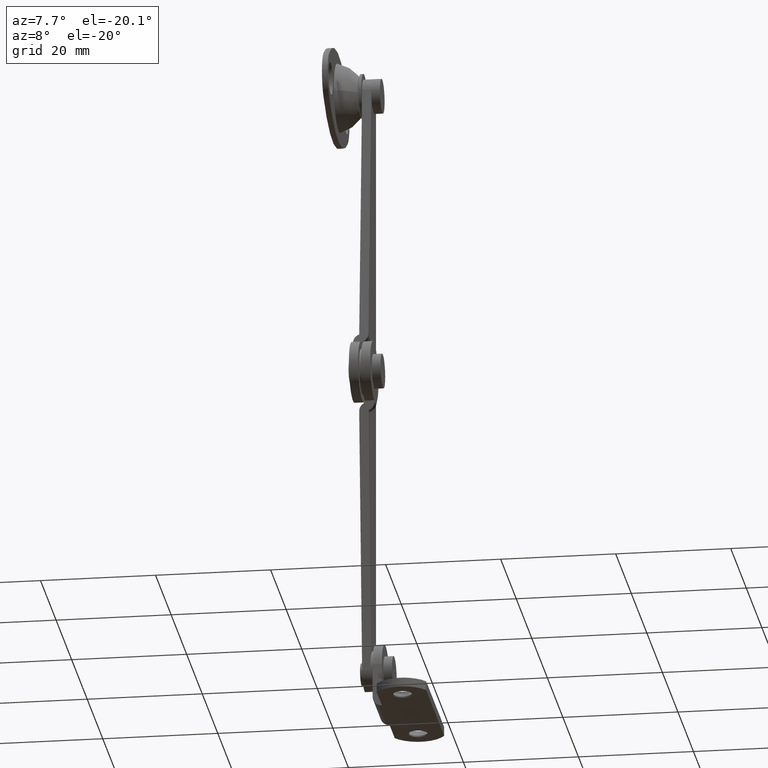
[diagram: clean part render]
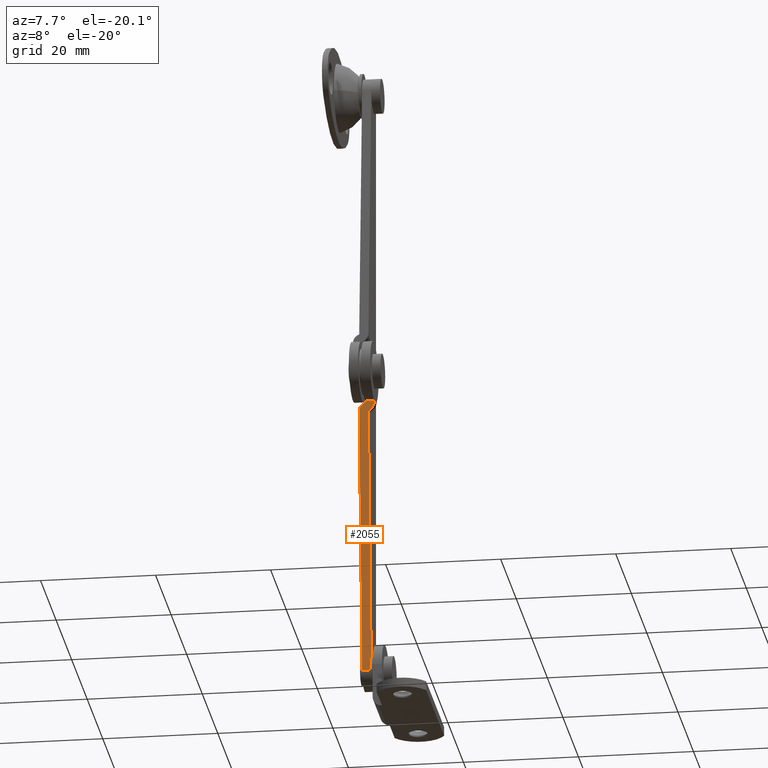
[diagram: same view with one face highlighted and labeled with its STEP entity id]
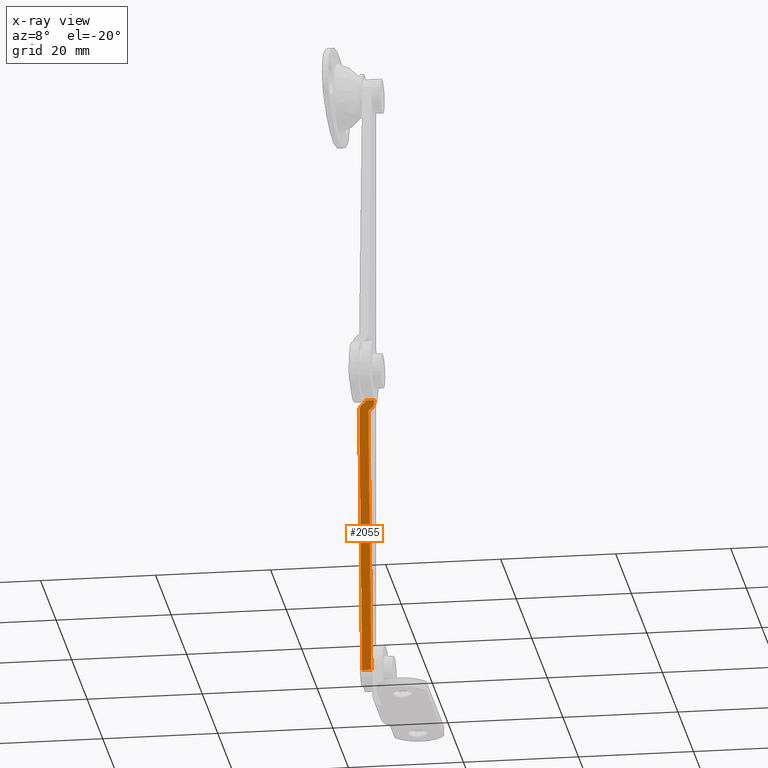
[diagram: x-ray of the same camera — body ghosted, the highlighted face saturated]
A machine part, auxiliary view. The second image highlights one B-rep face of the part: STEP entity #2055.
The next image is the same camera in x-ray: the body ghosted, the highlighted face saturated — about 0% of this face is hidden behind the body in this view.
In plain terms, the highlighted face is a freeform B-spline surface patch.
Its self-contained STEP definition (entity closure, byte-faithful):
#1637=CARTESIAN_POINT('',(7.100006000000000,-6.747916441950870,7.095529461957770));
#1638=VERTEX_POINT('',#1637);
#1652=CARTESIAN_POINT('',(6.050002999999920,-6.870023119665469,5.595997662782440));
#1653=VERTEX_POINT('',#1652);
#1654=CARTESIAN_POINT('',(6.050002999999920,-6.870023119665469,5.595997662782440));
#1655=CARTESIAN_POINT('',(6.212407224976750,-6.865191129695891,5.655336945025567));
#1656=CARTESIAN_POINT('',(6.445695462408861,-6.854487783213494,5.786779456674821));
#1657=CARTESIAN_POINT('',(6.726545886148959,-6.832756231979227,6.053653903929455));
#1658=CARTESIAN_POINT('',(6.931715488720649,-6.808903516953238,6.346577316044114));
#1659=CARTESIAN_POINT('',(7.069724311995736,-6.779294502289894,6.710191000905013));
#1660=CARTESIAN_POINT('',(7.100044070543804,-6.757824893726143,6.973848659599504));
#1661=CARTESIAN_POINT('',(7.100006000000000,-6.747916441950870,7.095529461957770));
#1662=B_SPLINE_CURVE_WITH_KNOTS('',3,(#1654,#1655,#1656,#1657,#1658,#1659,#1660,#1661),.UNSPECIFIED.,.F.,.U.,(4,1,1,1,1,4),(0.000000144583685,0.518876837541320,0.793591573983378,1.159825175825096,1.587160246467204,1.953416605225001),.UNSPECIFIED.);
#1663=EDGE_CURVE('',#1653,#1638,#1662,.T.);
#1712=CARTESIAN_POINT('',(4.449996999999815,-6.877603526567550,5.502906429664800));
#1713=VERTEX_POINT('',#1712);
#1727=CARTESIAN_POINT('',(5.500000000000000,-6.755491901599469,7.002498983616509));
#1728=VERTEX_POINT('',#1727);
#1729=CARTESIAN_POINT('',(5.500000000000000,-6.755491901599469,7.002498983616509));
#1730=CARTESIAN_POINT('',(5.289709626803973,-6.761730256724018,6.925888825524466));
#1731=CARTESIAN_POINT('',(4.955495599274645,-6.778837484984667,6.715803404704816));
#1732=CARTESIAN_POINT('',(4.632667735861831,-6.813491118297171,6.290239249805924));
#1733=CARTESIAN_POINT('',(4.480200438250330,-6.846222626317812,5.888279766259495));
#1734=CARTESIAN_POINT('',(4.449928676181939,-6.867694351957495,5.624596108799278));
#1735=CARTESIAN_POINT('',(4.449996999999815,-6.877603526567550,5.502906429664800));
#1736=B_SPLINE_CURVE_WITH_KNOTS('',3,(#1729,#1730,#1731,#1732,#1733,#1734,#1735),.UNSPECIFIED.,.F.,.U.,(4,1,1,1,4),(0.000000144813337,0.671550828255013,1.159913040111545,1.587280509805133,1.953564611685721),.UNSPECIFIED.);
#1737=EDGE_CURVE('',#1728,#1713,#1736,.T.);
#1797=CARTESIAN_POINT('',(6.050002999999920,-6.898197663961629,5.250000000000110));
#1798=VERTEX_POINT('',#1797);
#1817=CARTESIAN_POINT('',(4.449996999999815,-6.898197663961629,5.250000000000110));
#1818=VERTEX_POINT('',#1817);
#1819=CARTESIAN_POINT('',(4.449996999999815,-6.898197663961629,5.250000000000110));
#1820=CARTESIAN_POINT('',(6.050002999999920,-6.898197663961629,5.250000000000110));
#1821=QUASI_UNIFORM_CURVE('',1,(#1819,#1820),.UNSPECIFIED.,.F.,.U.);
#1822=EDGE_CURVE('',#1818,#1798,#1821,.T.);
#1874=CARTESIAN_POINT('',(6.050002999999920,-6.898197663961629,5.250000000000110));
#1875=CARTESIAN_POINT('',(6.050002999999920,-6.870023119665469,5.595997662782440));
#1876=QUASI_UNIFORM_CURVE('',1,(#1874,#1875),.UNSPECIFIED.,.F.,.U.);
#1877=EDGE_CURVE('',#1798,#1653,#1876,.T.);
#1903=CARTESIAN_POINT('',(4.449996999999815,-6.877603526567550,5.502906429664800));
#1904=CARTESIAN_POINT('',(4.449996999999815,-6.898197663961629,5.250000000000110));
#1905=QUASI_UNIFORM_CURVE('',1,(#1903,#1904),.UNSPECIFIED.,.F.,.U.);
#1906=EDGE_CURVE('',#1713,#1818,#1905,.T.);
#1932=CARTESIAN_POINT('',(7.100006000000000,-2.990626677684695,53.236949289969097));
#1933=VERTEX_POINT('',#1932);
#1934=CARTESIAN_POINT('',(7.100006000000000,-2.990626677684695,53.236949289969097));
#1935=CARTESIAN_POINT('',(7.100006000000000,-6.747916441950870,7.095529461957770));
#1936=QUASI_UNIFORM_CURVE('',1,(#1934,#1935),.UNSPECIFIED.,.F.,.U.);
#1937=EDGE_CURVE('',#1933,#1638,#1936,.T.);
#2030=CARTESIAN_POINT('',(4.317628980956870,-2.795443441130830,55.633898214929332));
#2031=CARTESIAN_POINT('',(4.317628980956870,-7.093380935451905,2.853050646003123));
#2032=CARTESIAN_POINT('',(7.232374019042943,-2.795443441130830,55.633898214929332));
#2033=CARTESIAN_POINT('',(7.232374019042943,-7.093380935451905,2.853050646003123));
#2034=B_SPLINE_SURFACE_WITH_KNOTS('',1,1,((#2030,#2032),(#2031,#2033)),.UNSPECIFIED.,.F.,.F.,.U.,(2,2),(2,2),(0.0,52.955548687548450),(0.0,2.914745038086073),.UNSPECIFIED.);
#2035=CARTESIAN_POINT('',(5.500000000000000,-2.990626677684695,53.236949289969097));
#2036=VERTEX_POINT('',#2035);
#2037=CARTESIAN_POINT('',(5.500000000000000,-2.990626677684695,53.236949289969097));
#2038=CARTESIAN_POINT('',(5.500000000000000,-6.755491901599469,7.002498983616509));
#2039=QUASI_UNIFORM_CURVE('',1,(#2037,#2038),.UNSPECIFIED.,.F.,.U.);
#2040=EDGE_CURVE('',#2036,#1728,#2039,.T.);
#2041=ORIENTED_EDGE('',*,*,#2040,.T.);
#2042=ORIENTED_EDGE('',*,*,#1737,.T.);
#2043=ORIENTED_EDGE('',*,*,#1906,.T.);
#2044=ORIENTED_EDGE('',*,*,#1822,.T.);
#2045=ORIENTED_EDGE('',*,*,#1877,.T.);
#2046=ORIENTED_EDGE('',*,*,#1663,.T.);
#2047=ORIENTED_EDGE('',*,*,#1937,.F.);
#2048=CARTESIAN_POINT('',(5.500000000000000,-2.990626677684695,53.236949289969097));
#2049=CARTESIAN_POINT('',(7.100006000000000,-2.990626677684695,53.236949289969097));
#2050=QUASI_UNIFORM_CURVE('',1,(#2048,#2049),.UNSPECIFIED.,.F.,.U.);
#2051=EDGE_CURVE('',#2036,#1933,#2050,.T.);
#2052=ORIENTED_EDGE('',*,*,#2051,.F.);
#2053=EDGE_LOOP('',(#2041,#2042,#2043,#2044,#2045,#2046,#2047,#2052));
#2054=FACE_OUTER_BOUND('',#2053,.T.);
#2055=ADVANCED_FACE('',(#2054),#2034,.T.);